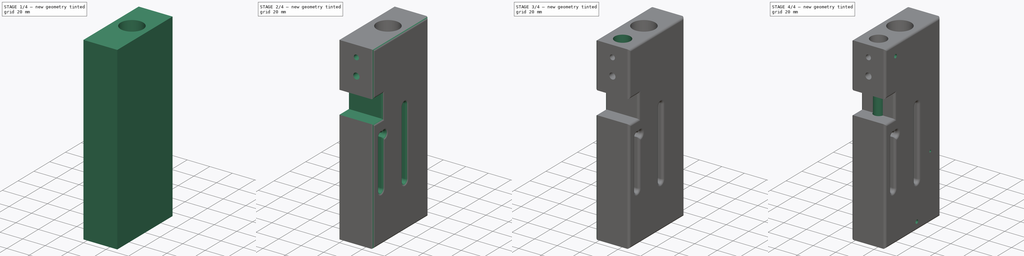
[diagram: build sequence overview — one tinted view per stage of 4, left to right]
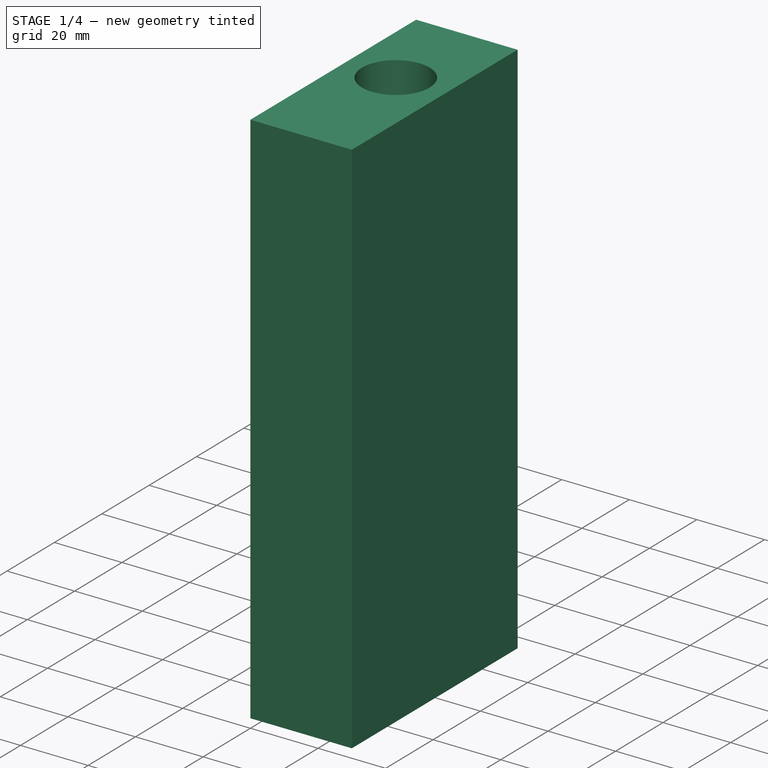
[diagram: stage 1 of 4 — iso view after this stage's code; geometry added in this stage tinted green]
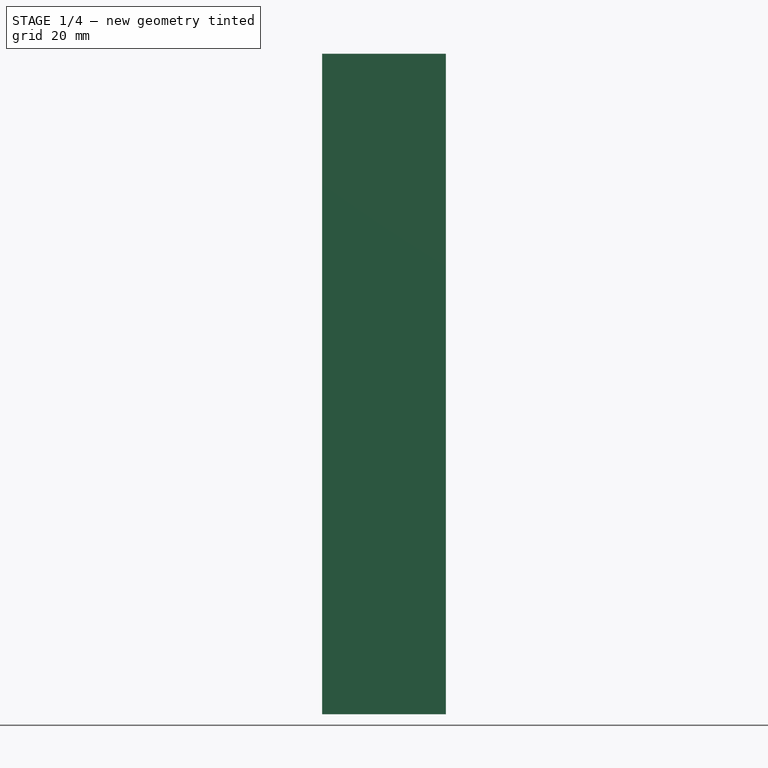
[diagram: stage 1 of 4 — front view after this stage's code; geometry added in this stage tinted green]
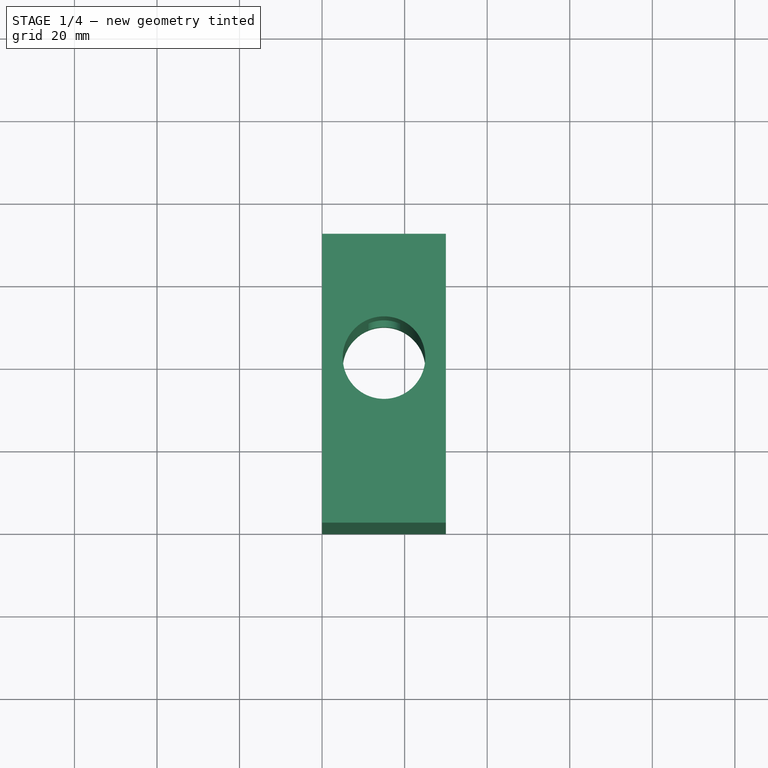
[diagram: stage 1 of 4 — top view after this stage's code; geometry added in this stage tinted green]
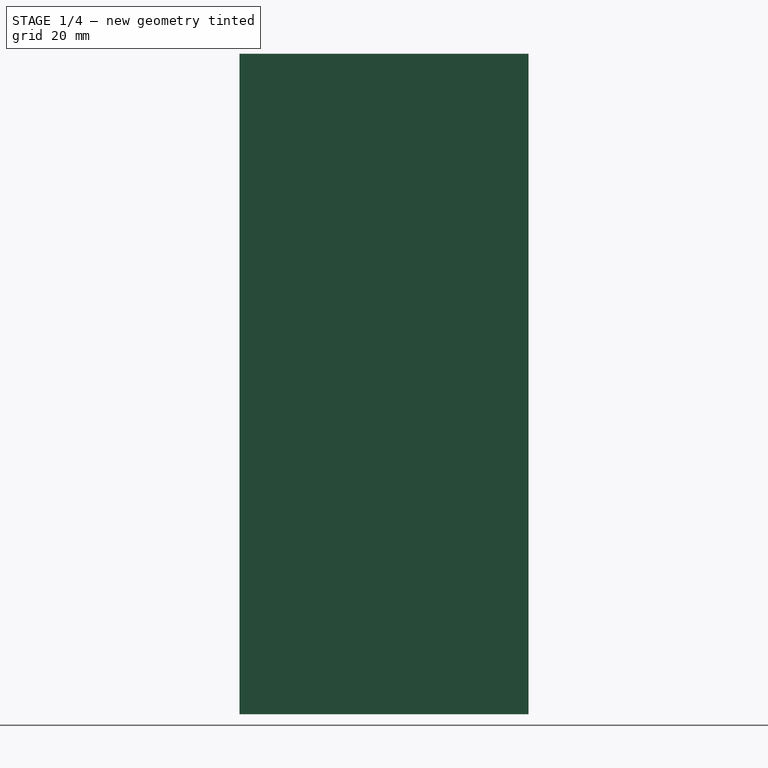
[diagram: stage 1 of 4 — right view after this stage's code; geometry added in this stage tinted green]
FCSTD DOCUMENT  (FreeCAD 1.0R39319 (Git))
Label: pcp_triger_hammer_body3
License: All rights reserved
LicenseURL: https://en.wikipedia.org/wiki/All_rights_reserved
objects: Sketcher::SketchObject×10, PartDesign::Pocket×9, PartDesign::Plane×8, PartDesign::Fillet×2, PartDesign::Pad×1, PartDesign::Body×1
note: 65 computed .brp shape members not serialized (recipe doc carries the construction recipe); baked Part::Feature solids carry a one-line shape summary decoded from their .brp

FEATURE [Sketcher::SketchObject] Sketch
  ArcFitTolerance = 1e-06
  AttachmentSupport = -> [XY_Plane]
  FullyConstrained = true
  MakeInternals = false
  MapMode = 5
  sketch-geometry (7):
    g0: LineSegment StartX=0 StartY=0 StartZ=0 EndX=30 EndY=0 EndZ=0
    g1: LineSegment StartX=30 StartY=0 StartZ=0 EndX=30 EndY=70 EndZ=0
    g2: LineSegment StartX=30 StartY=70 StartZ=0 EndX=0 EndY=70 EndZ=0
    g3: LineSegment StartX=0 StartY=70 StartZ=0 EndX=0 EndY=0 EndZ=0
    g4: Circle CenterX=15 CenterY=40 CenterZ=0 NormalX=0 NormalY=0 NormalZ=1 AngleXU=0 Radius=10
    g5: GeomPoint X=0 Y=70 Z=0
    g6: GeomPoint X=30 Y=70 Z=0
  constraints (16):
    c: Coincident(g0,g1)
    c: Coincident(g1,g2)
    c: Coincident(g2,g3)
    c: Coincident(g3,g0)
    c: Horizontal(g0)
    c: Horizontal(g2)
    c: Vertical(g1)
    c: Vertical(g3)
    c: Distance(g1,g3) = 30
    c: Distance(g0,g2) = 70
    c: Coincident(g0,g-1)
    c: Diameter(g4) = 20
    c: Coincident(g5,g2)
    c: Coincident(g6,g1)
    c: DistanceX(g2,g4) = 15
    c: DistanceY(g0,g4) = 40
FEATURE [PartDesign::Pad] Pad
  Direction = (0,0,1)
  Length = 160
  Length2 = 10
  Profile = -> Sketch
  ReferenceAxis = -> Sketch [N_Axis]
  Refine = true
  Suppressed = false
  Type = 0
FEATURE [PartDesign::Plane] DatumPlane
  AttachmentSupport = -> [Pad]
  Length = 60
  MapMode = 5
  Placement = pos=(0,70,0) rot=(0,0.707107,0.707107;3.14159rad)
  ResizeMode = 0
  Width = 60
FEATURE [Sketcher::SketchObject] Sketch001
  ArcFitTolerance = 1e-06
  AttachmentSupport = -> [DatumPlane]
  FullyConstrained = true
  MakeInternals = false
  MapMode = 5
  Placement = pos=(0,70,0) rot=(0,0.707107,0.707107;3.14159rad)
  sketch-geometry (4):
    g0: ArcOfCircle CenterX=-15 CenterY=15 CenterZ=0 NormalX=0 NormalY=0 NormalZ=1 AngleXU=0 Radius=4 StartAngle=3.14159 EndAngle=6.28319
    g1: ArcOfCircle CenterX=-15 CenterY=100 CenterZ=0 NormalX=0 NormalY=0 NormalZ=1 AngleXU=0 Radius=4 StartAngle=0 EndAngle=3.14159
    g2: LineSegment StartX=-19 StartY=15 StartZ=0 EndX=-19 EndY=100 EndZ=0
    g3: LineSegment StartX=-11 StartY=15 StartZ=0 EndX=-11 EndY=100 EndZ=0
  constraints (10):
    c: Tangent(g0,g2) = 1.5708
    c: Tangent(g0,g3) = -1.5708
    c: Tangent(g1,g2) = 1.5708
    c: Tangent(g1,g3) = -1.5708
    c: Equal(g0,g1)
    c: Radius(g0) = 4
    c: Vertical(g2)
    c: DistanceY(g-1,g0) = 15
    c: DistanceY(g-1,g1) = 100
    c: DistanceX(g0,g-1) = 15
FEATURE [PartDesign::Pocket] Pocket
  BaseFeature = -> Pad
  Direction = (0,-1,2e-16)
  Length = 30
  Length2 = 5
  Profile = -> Sketch001
  ReferenceAxis = -> Sketch001 [N_Axis]
  Refine = true
  Suppressed = false
  Type = 0
FEATURE [Sketcher::SketchObject] Sketch002
  ArcFitTolerance = 1e-06
  AttachmentSupport = -> [DatumPlane]
  FullyConstrained = true
  MakeInternals = false
  MapMode = 5
  Placement = pos=(0,70,0) rot=(0,0.707107,0.707107;3.14159rad)
  sketch-geometry (4):
    g0: Circle CenterX=-15 CenterY=5.5 CenterZ=0 NormalX=0 NormalY=0 NormalZ=1 AngleXU=0 Radius=2.25
    g1: Circle CenterX=-15 CenterY=135 CenterZ=0 NormalX=0 NormalY=0 NormalZ=1 AngleXU=0 Radius=2.75
    g2: Circle CenterX=-15 CenterY=110 CenterZ=0 NormalX=0 NormalY=0 NormalZ=1 AngleXU=0 Radius=2.25
    g3: Circle CenterX=-15 CenterY=155 CenterZ=0 NormalX=0 NormalY=0 NormalZ=1 AngleXU=0 Radius=2.25
  constraints (12):
    c: Diameter(g0) = 4.5
    c: DistanceX(g0,g-1) = 15
    c: DistanceY(g-1,g0) = 5.5
    c: Diameter(g1) = 5.5
    c: DistanceX(g1,g-1) = 15
    c: DistanceY(g-1,g1) = 135
    c: Diameter(g2) = 4.5
    c: DistanceX(g2,g-1) = 15
    c: DistanceY(g-1,g2) = 110
    c: Diameter(g3) = 4.5
    c: DistanceY(g-1,g3) = 155
    c: DistanceX(g3,g-1) = 15
FEATURE [PartDesign::Pocket] Pocket001
  BaseFeature = -> Pocket
  Direction = (0,-1,2e-16)
  Length = 5
  Length2 = 5
  Profile = -> Sketch002
  ReferenceAxis = -> Sketch002 [N_Axis]
  Refine = true
  Suppressed = false
  Type = 0
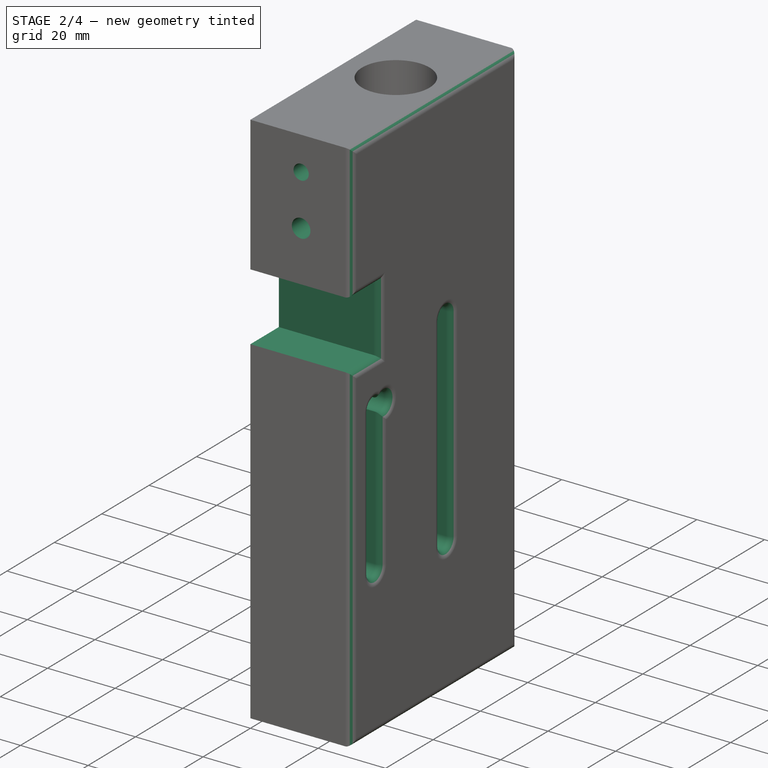
[diagram: stage 2 of 4 — iso view after this stage's code; geometry added in this stage tinted green]
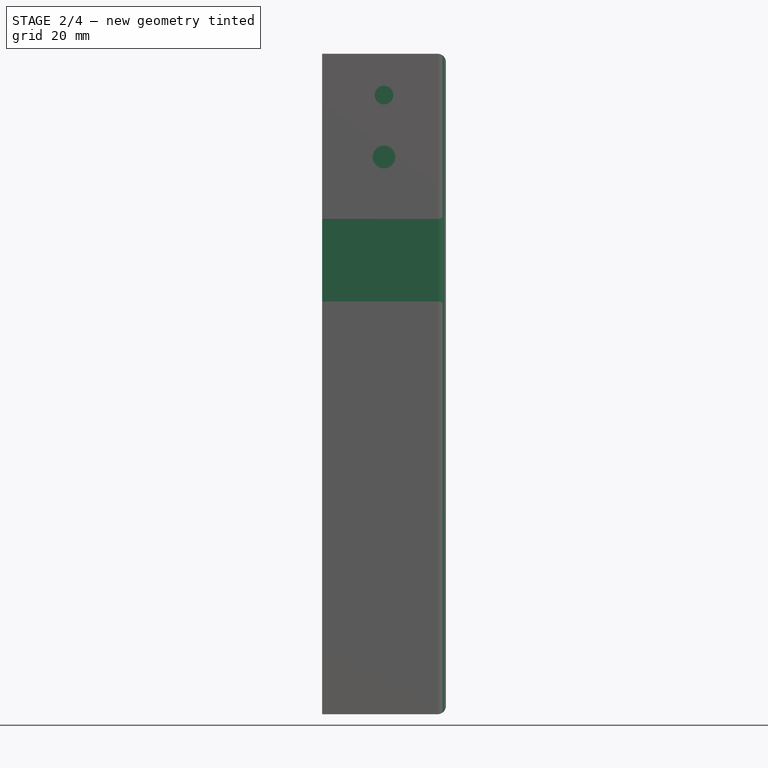
[diagram: stage 2 of 4 — front view after this stage's code; geometry added in this stage tinted green]
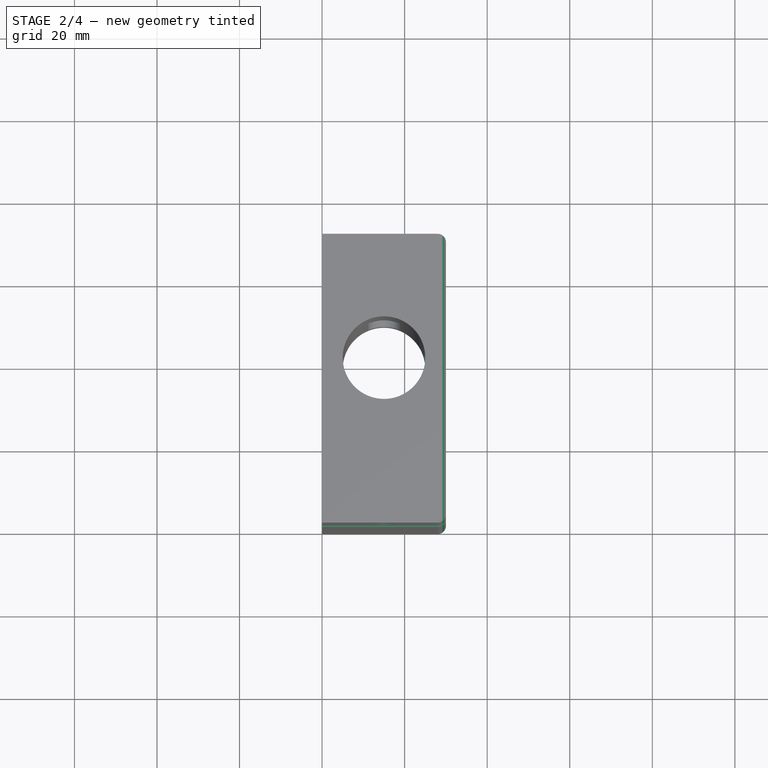
[diagram: stage 2 of 4 — top view after this stage's code; geometry added in this stage tinted green]
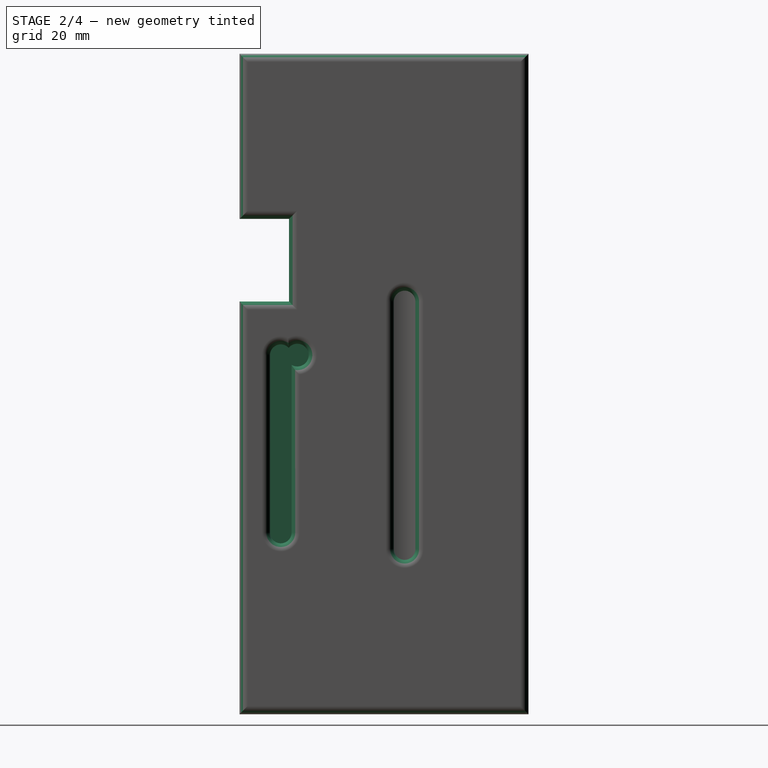
[diagram: stage 2 of 4 — right view after this stage's code; geometry added in this stage tinted green]
FEATURE [PartDesign::Plane] DatumPlane001
  AttachmentSupport = -> [Pocket001]
  Length = 60
  MapMode = 5
  Placement = pos=(30,0,0) rot=(0.57735,0.57735,0.57735;2.0944rad)
  ResizeMode = 0
  Width = 60
FEATURE [Sketcher::SketchObject] Sketch003
  ArcFitTolerance = 1e-06
  AttachmentSupport = -> [DatumPlane001]
  FullyConstrained = true
  MakeInternals = false
  MapMode = 5
  Placement = pos=(30,0,0) rot=(0.57735,0.57735,0.57735;2.0944rad)
  sketch-geometry (9):
    g0: ArcOfCircle CenterX=40 CenterY=40 CenterZ=0 NormalX=0 NormalY=0 NormalZ=1 AngleXU=0 Radius=2.6 StartAngle=3.14159 EndAngle=6.28319
    g1: ArcOfCircle CenterX=40 CenterY=100 CenterZ=0 NormalX=0 NormalY=0 NormalZ=1 AngleXU=0 Radius=2.6 StartAngle=0 EndAngle=3.14159
    g2: LineSegment StartX=37.4 StartY=40 StartZ=0 EndX=37.4 EndY=100 EndZ=0
    g3: LineSegment StartX=42.6 StartY=40 StartZ=0 EndX=42.6 EndY=100 EndZ=0
    g4: ArcOfCircle CenterX=10 CenterY=44 CenterZ=0 NormalX=0 NormalY=0 NormalZ=1 AngleXU=0 Radius=2.6 StartAngle=3.14159 EndAngle=6.28319
    g5: ArcOfCircle CenterX=10 CenterY=87 CenterZ=0 NormalX=0 NormalY=0 NormalZ=1 AngleXU=0 Radius=2.6 StartAngle=-1.8e-15 EndAngle=3.14159
    g6: LineSegment StartX=7.4 StartY=44 StartZ=0 EndX=7.4 EndY=87 EndZ=0
    g7: LineSegment StartX=12.6 StartY=44 StartZ=0 EndX=12.6 EndY=87 EndZ=0
    g8: Circle CenterX=14 CenterY=87 CenterZ=0 NormalX=0 NormalY=0 NormalZ=1 AngleXU=0 Radius=2.75
  constraints (23):
    c: Tangent(g0,g2) = 1.5708
    c: Tangent(g0,g3) = -1.5708
    c: Tangent(g1,g2) = 1.5708
    c: Tangent(g1,g3) = -1.5708
    c: Equal(g0,g1)
    c: Vertical(g3)
    c: Distance(g0,g1) = 60
    c: Radius(g0) = 2.6
    c: DistanceY(g-1,g0) = 40
    c: DistanceX(g-1,g0) = 40
    c: Tangent(g4,g6) = 1.5708
    c: Tangent(g4,g7) = -1.5708
    c: Tangent(g5,g6) = 1.5708
    c: Tangent(g5,g7) = -1.5708
    c: Equal(g4,g5)
    c: Vertical(g7)
    c: Distance(g4,g5) = 43
    c: Radius(g4) = 2.6
    c: DistanceY(g-1,g4) = 44
    c: DistanceX(g-1,g4) = 10
    c: Diameter(g8) = 5.5
    c: DistanceY(g-1,g8) = 87
    c: DistanceX(g-1,g8) = 14
FEATURE [PartDesign::Pocket] Pocket002
  BaseFeature = -> Pocket001
  Direction = (-1,0,0)
  Length = 15
  Length2 = 5
  Profile = -> Sketch003
  ReferenceAxis = -> Sketch003 [N_Axis]
  Refine = true
  Suppressed = false
  Type = 0
FEATURE [PartDesign::Plane] DatumPlane002
  AttachmentSupport = -> [Pocket002]
  Length = 60
  MapMode = 5
  Placement = pos=(0,0,0) rot=(1,0,0;1.5708rad)
  ResizeMode = 0
  Width = 60
FEATURE [Sketcher::SketchObject] Sketch004
  ArcFitTolerance = 1e-06
  AttachmentSupport = -> [DatumPlane002]
  FullyConstrained = false
  MakeInternals = false
  MapMode = 5
  Placement = pos=(0,0,0) rot=(1,0,0;1.5708rad)
  sketch-geometry (6):
    g0: Circle CenterX=15 CenterY=150 CenterZ=0 NormalX=0 NormalY=0 NormalZ=1 AngleXU=0 Radius=2.25
    g1: Circle CenterX=15 CenterY=135 CenterZ=0 NormalX=0 NormalY=0 NormalZ=1 AngleXU=0 Radius=2.75
    g2: LineSegment StartX=-51.4429 StartY=120 StartZ=0 EndX=-51.4429 EndY=100 EndZ=0
    g3: LineSegment StartX=-51.4429 StartY=100 StartZ=0 EndX=52.5713 EndY=100 EndZ=0
    g4: LineSegment StartX=52.5713 StartY=100 StartZ=0 EndX=52.5713 EndY=120 EndZ=0
    g5: LineSegment StartX=52.5713 StartY=120 StartZ=0 EndX=-51.4429 EndY=120 EndZ=0
  constraints (16):
    c: Diameter(g0) = 4.5
    c: Diameter(g1) = 5.5
    c: DistanceY(g-1,g0) = 150
    c: DistanceX(g-1,g0) = 15
    c: DistanceX(g-1,g1) = 15
    c: DistanceY(g-1,g1) = 135
    c: Coincident(g2,g3)
    c: Coincident(g3,g4)
    c: Coincident(g4,g5)
    c: Coincident(g5,g2)
    c: Vertical(g2)
    c: Vertical(g4)
    c: Horizontal(g3)
    c: Horizontal(g5)
    c: DistanceY(g2,g2) = 20
    c: DistanceY(g-1,g2) = 100
FEATURE [PartDesign::Pocket] Pocket003
  BaseFeature = -> Pocket002
  Direction = (0,1,-2e-16)
  Length = 12
  Length2 = 5
  Profile = -> Sketch004
  ReferenceAxis = -> Sketch004 [N_Axis]
  Refine = true
  Suppressed = false
  Type = 0
FEATURE [PartDesign::Fillet] Fillet
  Base = -> Pocket003 [Face3]
  BaseFeature = -> Pocket003
  Radius = 2
  Refine = true
  SupportTransform = false
  Suppressed = false
  UseAllEdges = false
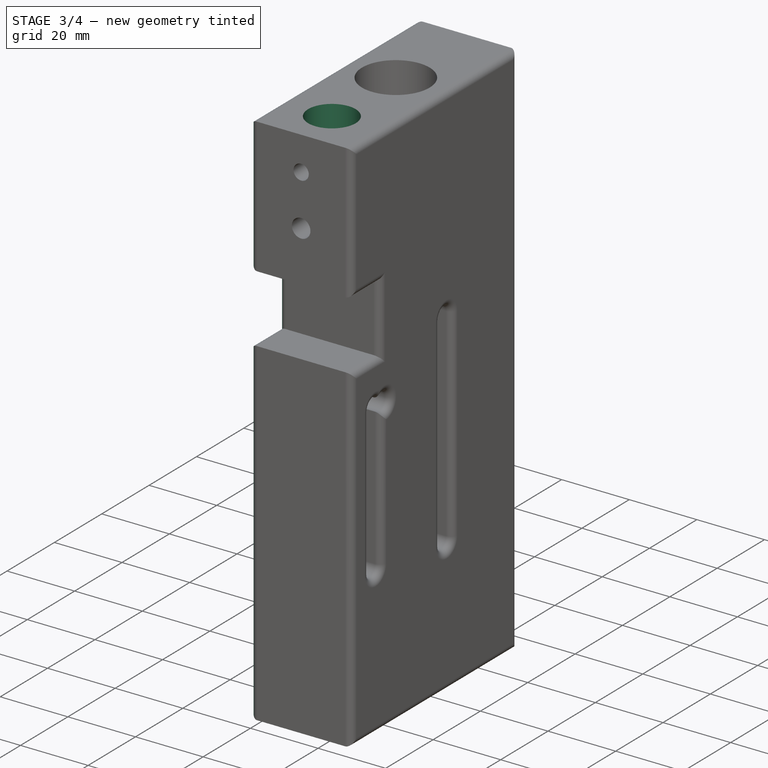
[diagram: stage 3 of 4 — iso view after this stage's code; geometry added in this stage tinted green]
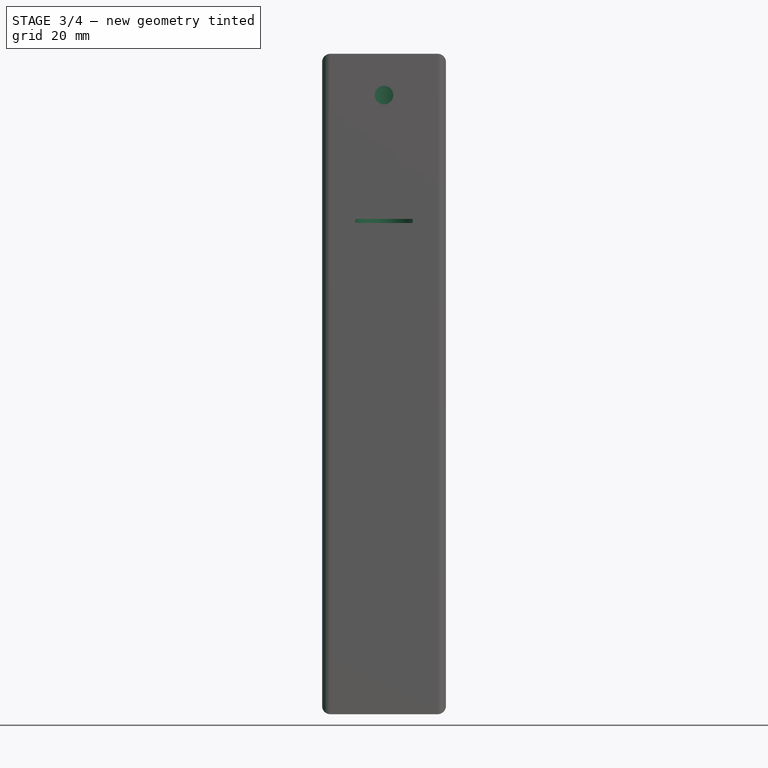
[diagram: stage 3 of 4 — front view after this stage's code; geometry added in this stage tinted green]
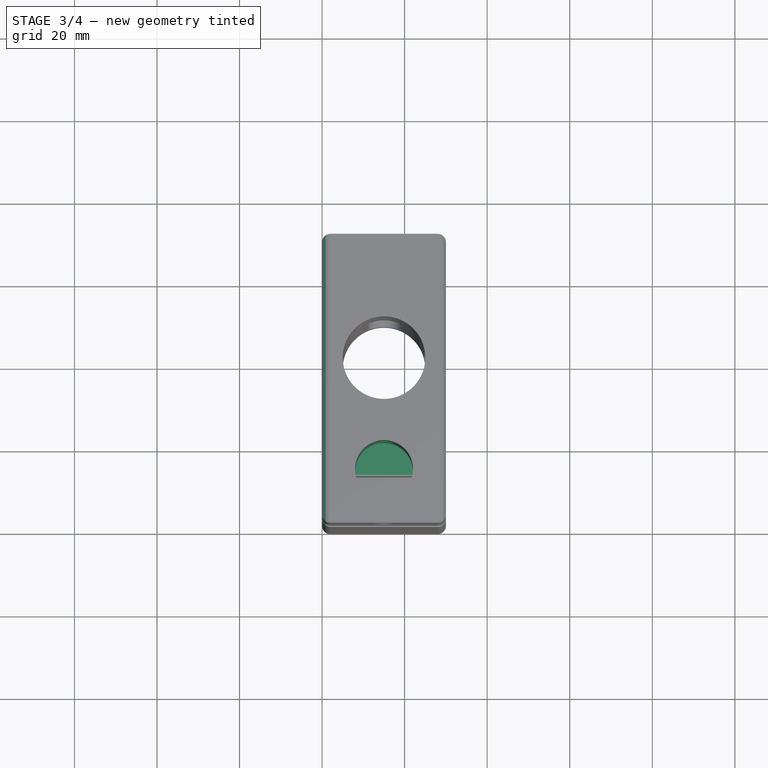
[diagram: stage 3 of 4 — top view after this stage's code; geometry added in this stage tinted green]
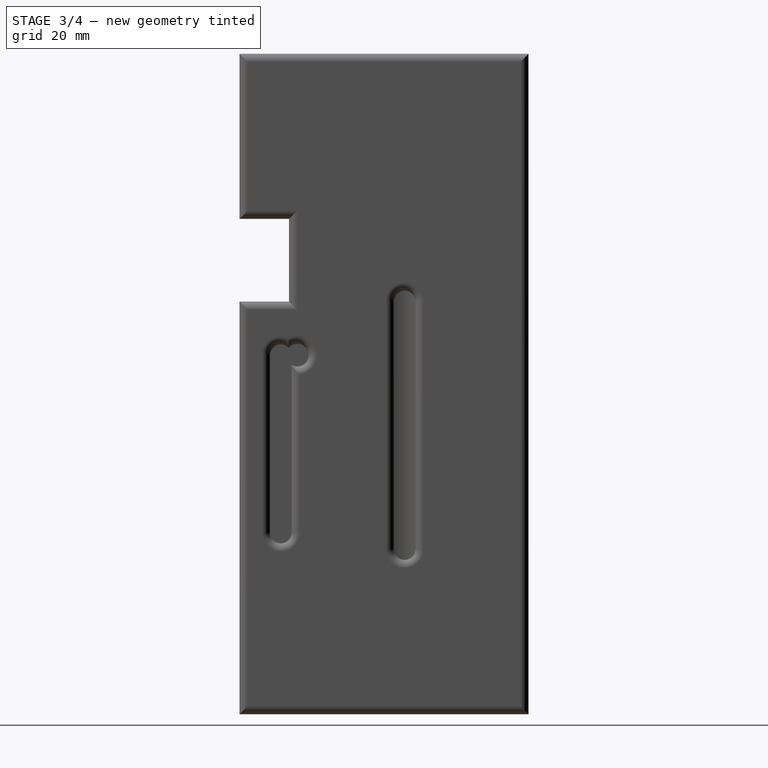
[diagram: stage 3 of 4 — right view after this stage's code; geometry added in this stage tinted green]
FEATURE [PartDesign::Fillet] Fillet001
  Base = -> Fillet [Face4]
  BaseFeature = -> Fillet
  Radius = 2
  Refine = true
  SupportTransform = false
  Suppressed = false
  UseAllEdges = false
FEATURE [PartDesign::Plane] DatumPlane003
  AttachmentSupport = -> [Fillet001]
  Length = 60
  MapMode = 5
  Placement = pos=(0,0,0) rot=(1,0,0;1.5708rad)
  ResizeMode = 0
  Width = 60
FEATURE [Sketcher::SketchObject] Sketch005
  ArcFitTolerance = 1e-06
  AttachmentSupport = -> [DatumPlane003]
  FullyConstrained = true
  MakeInternals = false
  MapMode = 5
  Placement = pos=(0,0,0) rot=(1,0,0;1.5708rad)
  sketch-geometry (1):
    g0: Circle CenterX=15 CenterY=135 CenterZ=0 NormalX=0 NormalY=0 NormalZ=1 AngleXU=0 Radius=2.75
  constraints (3):
    c: Diameter(g0) = 5.5
    c: DistanceY(g-1,g0) = 135
    c: DistanceX(g-1,g0) = 15
FEATURE [PartDesign::Pocket] Pocket004
  BaseFeature = -> Fillet001
  Direction = (0,1,-2e-16)
  Length = 30
  Length2 = 5
  Profile = -> Sketch005
  ReferenceAxis = -> Sketch005 [N_Axis]
  Refine = true
  Suppressed = false
  Type = 0
FEATURE [PartDesign::Plane] DatumPlane004
  AttachmentSupport = -> [Pocket004]
  Length = 60
  MapMode = 5
  Placement = pos=(0,0,160) rot=(0,0,1;0rad)
  ResizeMode = 0
  Width = 60
FEATURE [Sketcher::SketchObject] Sketch006
  ArcFitTolerance = 1e-06
  AttachmentSupport = -> [DatumPlane004]
  FullyConstrained = true
  MakeInternals = false
  MapMode = 5
  Placement = pos=(0,0,160) rot=(0,0,1;0rad)
  sketch-geometry (1):
    g0: Circle CenterX=15 CenterY=13 CenterZ=0 NormalX=0 NormalY=0 NormalZ=1 AngleXU=0 Radius=7.025
  constraints (3):
    c: Diameter(g0) = 14.05
    c: DistanceY(g-1,g0) = 13
    c: DistanceX(g-1,g0) = 15
FEATURE [PartDesign::Pocket] Pocket005
  BaseFeature = -> Pocket004
  Direction = (0,0,-1)
  Length = 41
  Length2 = 5
  Profile = -> Sketch006
  ReferenceAxis = -> Sketch006 [N_Axis]
  Refine = true
  Suppressed = false
  Type = 0
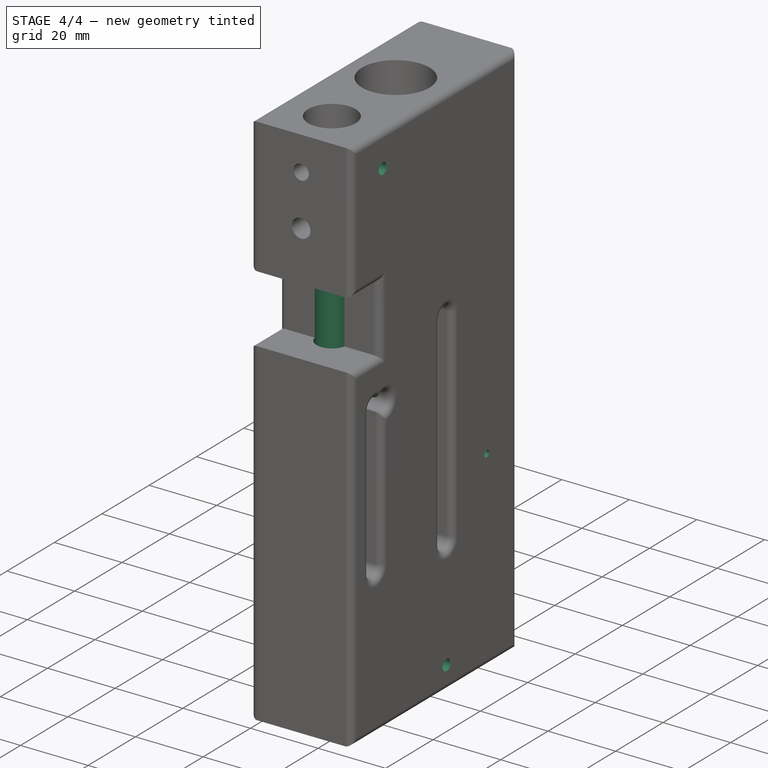
[diagram: stage 4 of 4 — iso view after this stage's code; geometry added in this stage tinted green]
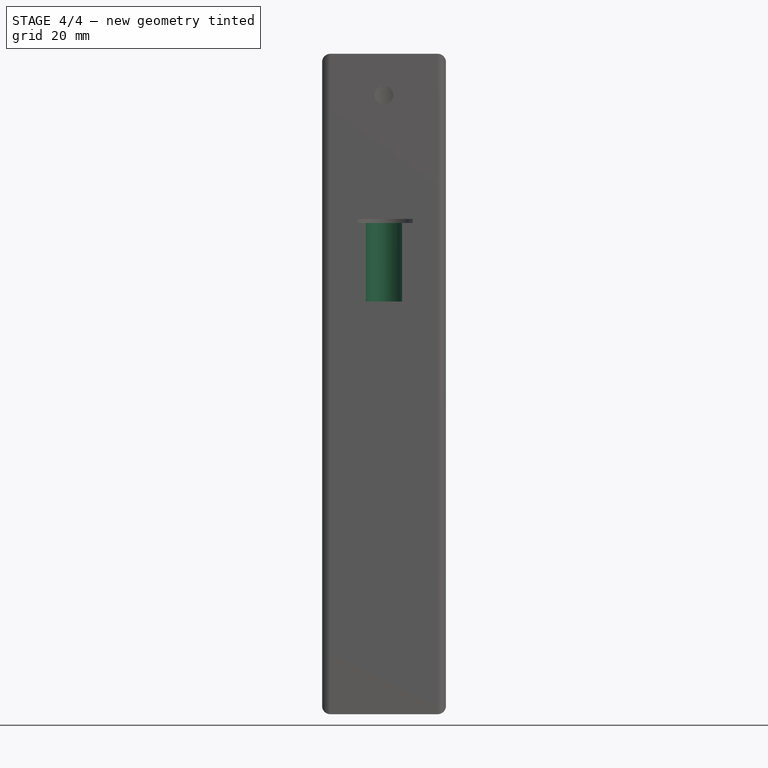
[diagram: stage 4 of 4 — front view after this stage's code; geometry added in this stage tinted green]
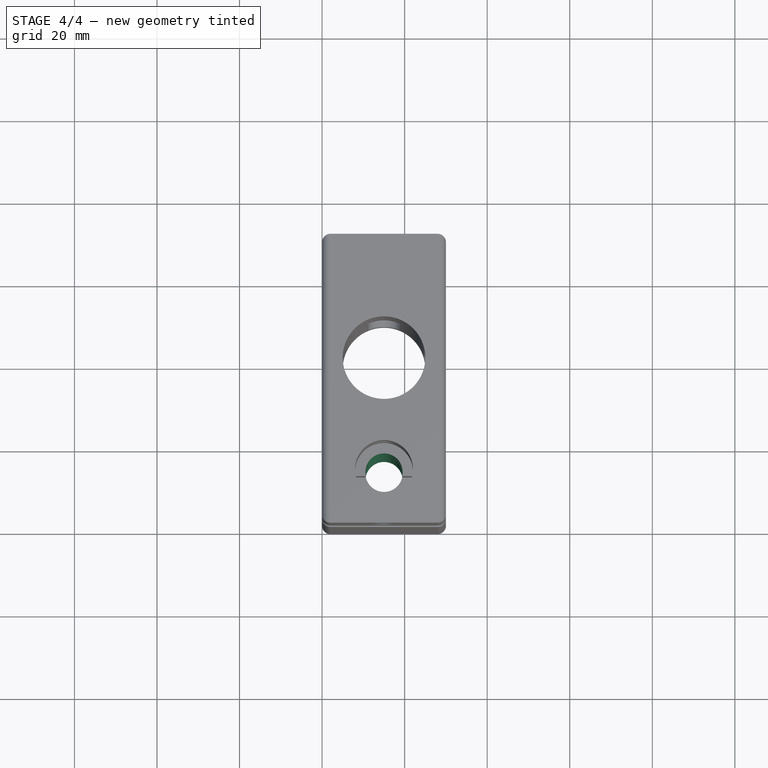
[diagram: stage 4 of 4 — top view after this stage's code; geometry added in this stage tinted green]
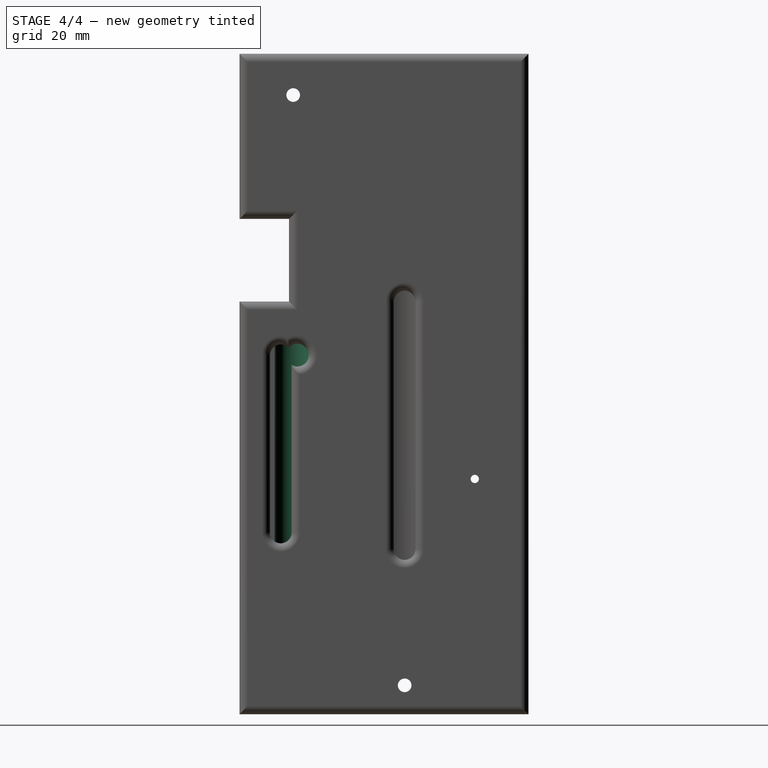
[diagram: stage 4 of 4 — right view after this stage's code; geometry added in this stage tinted green]
FEATURE [PartDesign::Plane] DatumPlane005
  AttachmentSupport = -> [Pocket005]
  Length = 60
  MapMode = 5
  Placement = pos=(0,0,160) rot=(0,0,1;0rad)
  ResizeMode = 0
  Width = 60
FEATURE [Sketcher::SketchObject] Sketch007
  ArcFitTolerance = 1e-06
  AttachmentSupport = -> [Pocket005]
  FullyConstrained = true
  MakeInternals = false
  MapMode = 5
  Placement = pos=(0,0,160) rot=(0,0,1;0rad)
  sketch-geometry (1):
    g0: Circle CenterX=15 CenterY=13 CenterZ=0 NormalX=0 NormalY=0 NormalZ=1 AngleXU=0 Radius=4.5
  constraints (3):
    c: Diameter(g0) = 9
    c: DistanceY(g-1,g0) = 13
    c: DistanceX(g-1,g0) = 15
FEATURE [PartDesign::Pocket] Pocket006
  BaseFeature = -> Pocket005
  Direction = (0,0,-1)
  Length = 5
  Length2 = 5
  Profile = -> Sketch007
  ReferenceAxis = -> Sketch007 [N_Axis]
  Refine = true
  Suppressed = false
  Type = 1
FEATURE [PartDesign::Plane] DatumPlane006
  AttachmentSupport = -> [Pocket006]
  Length = 60
  MapMode = 5
  Placement = pos=(30,0,0) rot=(0.57735,0.57735,0.57735;2.0944rad)
  ResizeMode = 0
  Width = 60
FEATURE [Sketcher::SketchObject] Sketch008
  ArcFitTolerance = 1e-06
  AttachmentSupport = -> [DatumPlane006]
  FullyConstrained = true
  MakeInternals = false
  MapMode = 5
  Placement = pos=(30,0,0) rot=(0.57735,0.57735,0.57735;2.0944rad)
  sketch-geometry (1):
    g0: Circle CenterX=57 CenterY=57 CenterZ=0 NormalX=0 NormalY=0 NormalZ=1 AngleXU=0 Radius=1
  constraints (3):
    c: Diameter(g0) = 2
    c: DistanceY(g-1,g0) = 57
    c: DistanceX(g-1,g0) = 57
FEATURE [PartDesign::Pocket] Pocket007
  BaseFeature = -> Pocket006
  Direction = (-1,0,0)
  Length = 5
  Length2 = 5
  Profile = -> Sketch008
  ReferenceAxis = -> Sketch008 [N_Axis]
  Refine = true
  Suppressed = false
  Type = 1
FEATURE [PartDesign::Plane] DatumPlane007
  AttachmentSupport = -> [Pocket007]
  Length = 60
  MapMode = 5
  Placement = pos=(30,0,0) rot=(0.57735,0.57735,0.57735;2.0944rad)
  ResizeMode = 0
  Width = 60
FEATURE [Sketcher::SketchObject] Sketch009
  ArcFitTolerance = 1e-06
  AttachmentSupport = -> [DatumPlane007]
  FullyConstrained = true
  MakeInternals = false
  MapMode = 5
  Placement = pos=(30,0,0) rot=(0.57735,0.57735,0.57735;2.0944rad)
  sketch-geometry (2):
    g0: Circle CenterX=40 CenterY=7 CenterZ=0 NormalX=0 NormalY=0 NormalZ=1 AngleXU=0 Radius=1.65
    g1: Circle CenterX=13 CenterY=150 CenterZ=0 NormalX=0 NormalY=0 NormalZ=1 AngleXU=0 Radius=1.65
  constraints (6):
    c: Diameter(g0) = 3.3
    c: DistanceX(g-1,g0) = 40
    c: DistanceY(g-1,g0) = 7
    c: Diameter(g1) = 3.3
    c: DistanceY(g-1,g1) = 150
    c: DistanceX(g-1,g1) = 13
FEATURE [PartDesign::Pocket] Pocket008
  BaseFeature = -> Pocket007
  Direction = (-1,0,0)
  Length = 5
  Length2 = 5
  Profile = -> Sketch009
  ReferenceAxis = -> Sketch009 [N_Axis]
  Refine = true
  Suppressed = false
  Type = 1
FEATURE [PartDesign::Body] Body
  AllowCompound = false
  Group = -> [Sketch,Pad,DatumPlane,Sketch001,Pocket,Sketch002,Pocket001,DatumPlane001,Sketch003,Pocket002,DatumPlane002,Sketch004,Pocket003,Fillet,Fillet001,DatumPlane003,Sketch005,Pocket004,DatumPlane004,Sketch006,Pocket005,DatumPlane005,Sketch007,Pocket006,DatumPlane006,Sketch008,Pocket007,DatumPlane007,Sketch009,Pocket008]
  Origin = -> Origin
  Tip = -> Pocket008
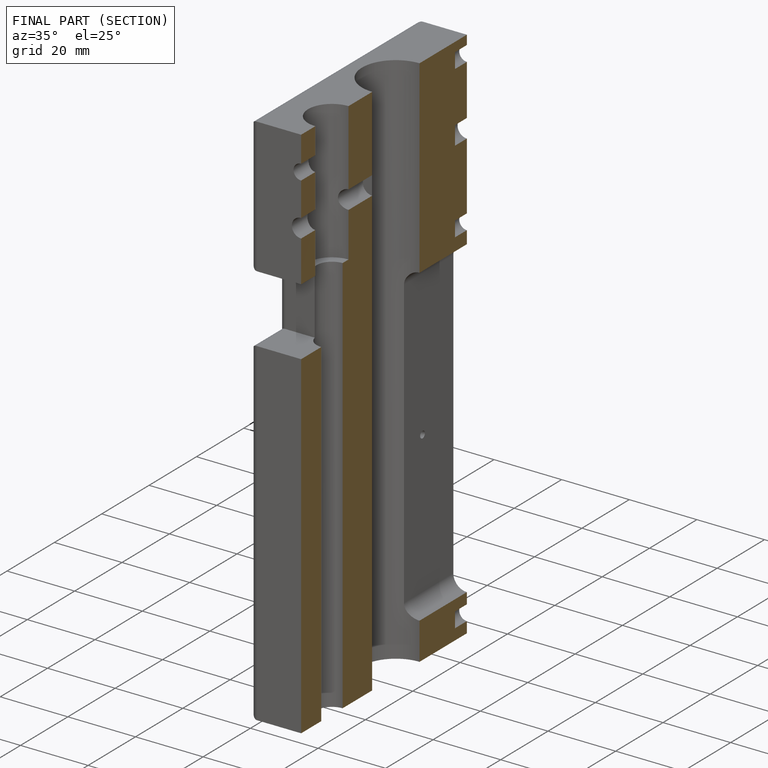
[diagram: finished part — half-section view (interior)]
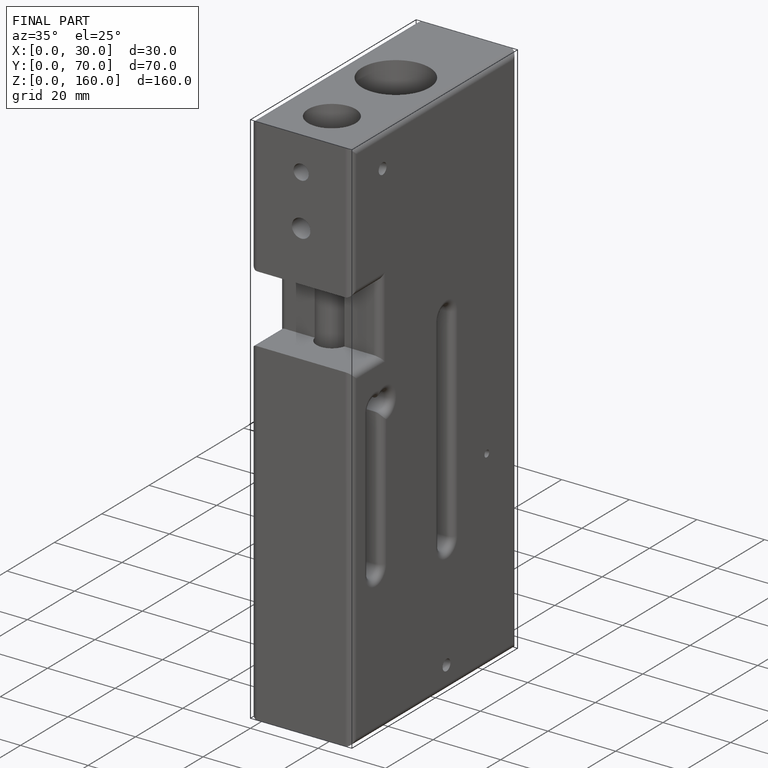
[diagram: finished part — iso view with bounding-box wireframe]
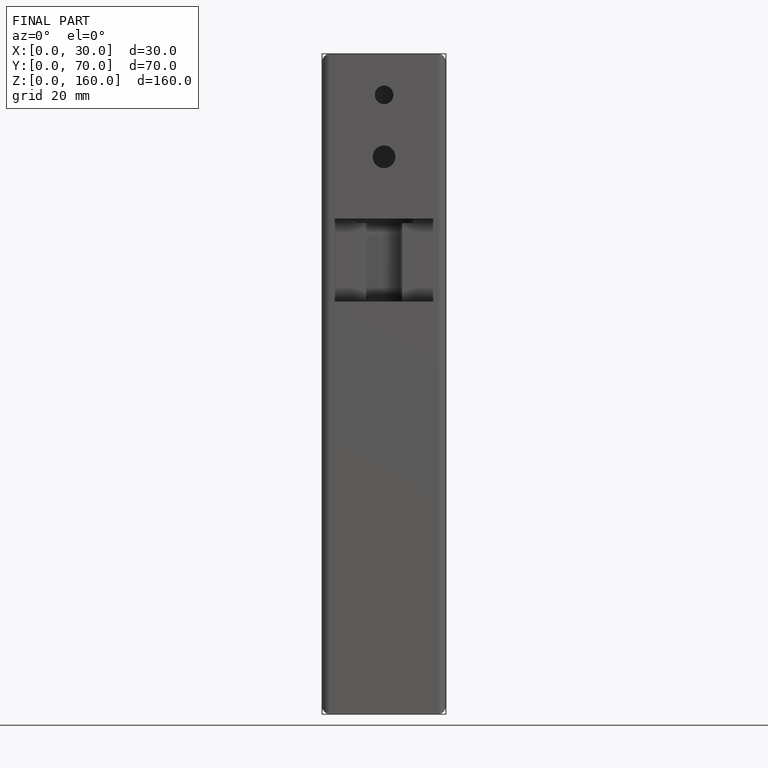
[diagram: finished part — front view with bounding-box wireframe]
